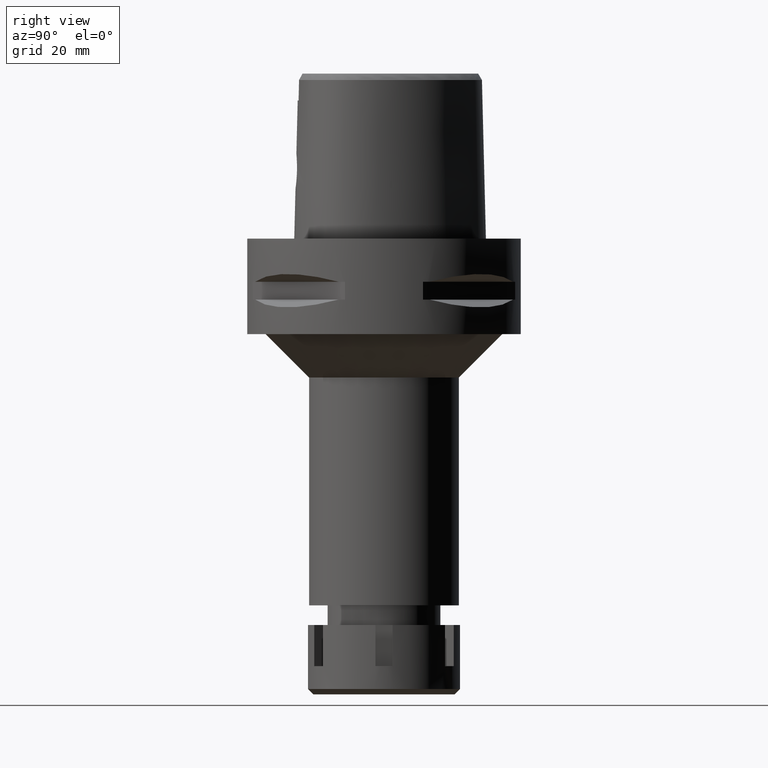
[diagram: clean part render]
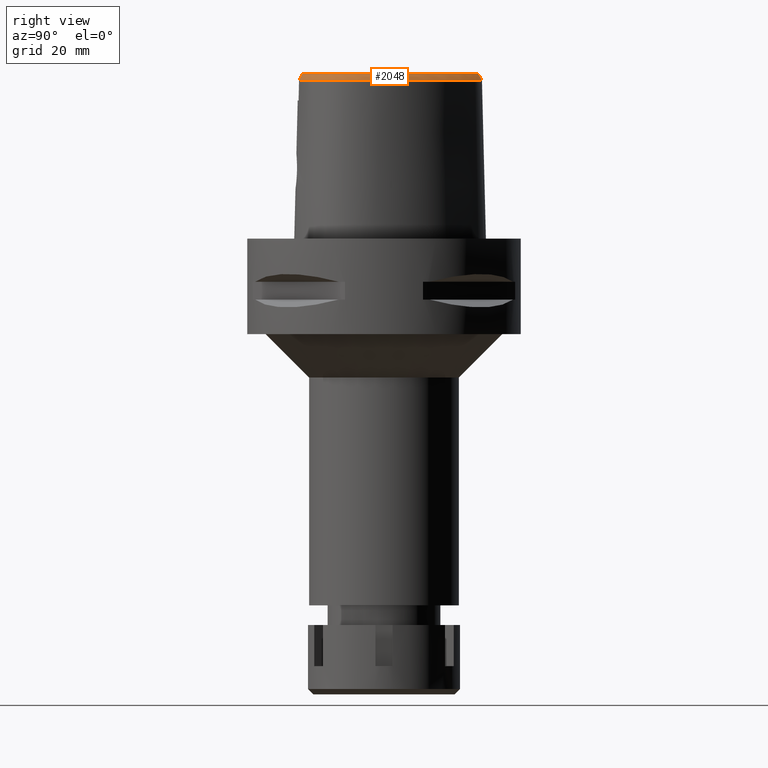
[diagram: same view with one face highlighted and labeled with its STEP entity id]
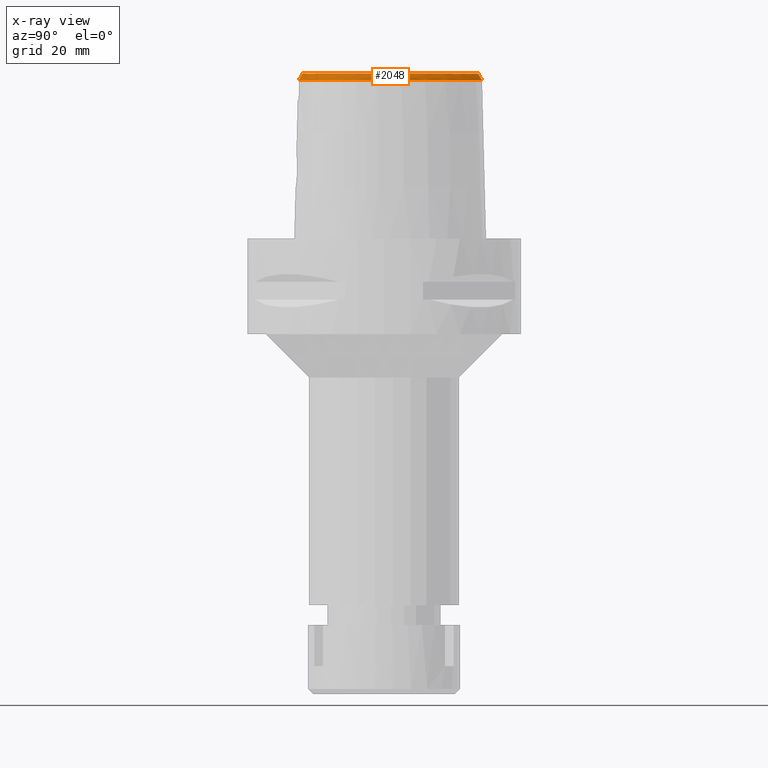
[diagram: x-ray of the same camera — body ghosted, the highlighted face saturated]
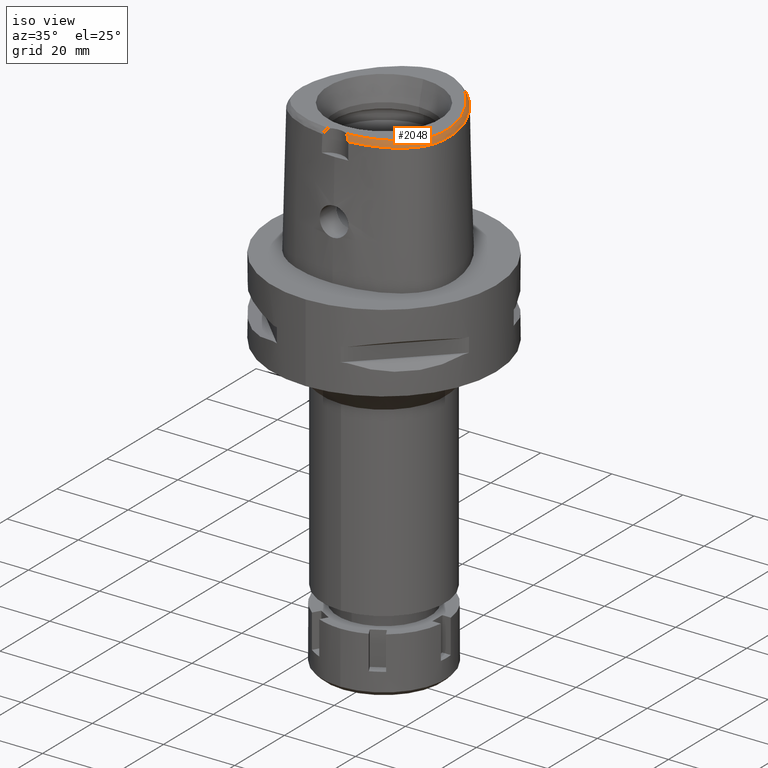
[diagram: same view with one face highlighted and labeled with its STEP entity id]
A machine part, right view. The second image highlights one B-rep face of the part: STEP entity #2048.
The next image is the same camera in x-ray: the body ghosted, the highlighted face saturated — about 0% of this face is hidden behind the body in this view.
A second angle (iso view) of the same face is appended — the face is thin or edge-on in the first view.
In plain terms, the highlighted face is a freeform B-spline surface patch.
Its self-contained STEP definition (entity closure, byte-faithful):
#4 = CARTESIAN_POINT ( 'NONE',  ( 16.77027971741999579, -14.22520960361999975, 36.95859739862999760 ) ) ;
#18 = CARTESIAN_POINT ( 'NONE',  ( 18.48090646670000226, 5.772583762424000398, 37.56323052471999802 ) ) ;
#21 = CARTESIAN_POINT ( 'NONE',  ( 5.894487344450387134, 20.13186406532343753, 37.99999999999565148 ) ) ;
#29 = CARTESIAN_POINT ( 'NONE',  ( 20.53595431444000141, -6.211100020891999307, 37.56323055905000530 ) ) ;
#43 = CARTESIAN_POINT ( 'NONE',  ( 13.32714837666999941, 13.70011182113999837, 38.16786340256999921 ) ) ;
#48 = CARTESIAN_POINT ( 'NONE',  ( 19.54993126781906909, -9.226212439885376426, 38.00000000000051870 ) ) ;
#57 = CARTESIAN_POINT ( 'NONE',  ( 20.05346243395999650, -7.004499759247999613, 38.16786336889999376 ) ) ;
#64 = CARTESIAN_POINT ( 'NONE',  ( 3.538616992104000047, -19.46459844962000219, 36.71623483132999866 ) ) ;
#75 = CARTESIAN_POINT ( 'NONE',  ( 14.26377732472000126, 12.48899554595999994, 38.16786327608000562 ) ) ;
#81 = CARTESIAN_POINT ( 'NONE',  ( 20.38292172607859953, -3.276278498261098182, 37.99999999999266720 ) ) ;
#92 = CARTESIAN_POINT ( 'NONE',  ( 2.887310443495000101, 21.94330980029999978, 36.95859789458999956 ) ) ;
#101 = CARTESIAN_POINT ( 'NONE',  ( 19.71158274065000171, 4.591222921567999826, 36.35396398715000288 ) ) ;
#115 = CARTESIAN_POINT ( 'NONE',  ( 1.312651314722000029, 21.51218614369999926, 38.16786341031000518 ) ) ;
#130 = CARTESIAN_POINT ( 'NONE',  ( 20.36412151360978839, -5.276385427453520016, 38.00000000000137135 ) ) ;
#144 = CARTESIAN_POINT ( 'NONE',  ( 2.712693346315999676, 21.24888306161999907, 38.16786328986999877 ) ) ;
#174 = CARTESIAN_POINT ( 'NONE',  ( -0.3941061714325999610, 21.58243180206000034, 38.16786335113999939 ) ) ;
#200 = CARTESIAN_POINT ( 'NONE',  ( 1.401755086744999934, 22.22268948226999896, 36.95859714739999902 ) ) ;
#220 = ORIENTED_EDGE ( 'NONE', *, *, #5160, .T. ) ;
#237 = CARTESIAN_POINT ( 'NONE',  ( 6.380974127333999490, -19.27358309198000086, 36.35396444141999694 ) ) ;
#254 = B_SPLINE_CURVE_WITH_KNOTS ( 'NONE', 3,
 ( #3138, #64, #3079, #3986, #459, #1770 ),
 .UNSPECIFIED., .F., .F.,
 ( 4, 1, 1, 4 ),
 ( 0.0000000000000000000, 0.3333333333333000081, 0.6666666666667000474, 1.000000000000000000 ),
 .UNSPECIFIED. ) ;
#264 = VERTEX_POINT ( 'NONE', #5329 ) ;
#270 = CARTESIAN_POINT ( 'NONE',  ( 15.35794273910000030, -15.33035634436999928, 36.95859813712999653 ) ) ;
#296 = CARTESIAN_POINT ( 'NONE',  ( 4.701486591769999279, -18.46760721563000018, 38.16786334769999911 ) ) ;
#320 = CARTESIAN_POINT ( 'NONE',  ( 20.67704204634206278, -8.734985285293410229, 36.52186680739945501 ) ) ;
#322 = CARTESIAN_POINT ( 'NONE',  ( 8.908621252354000930, -17.55270226214000218, 38.16786292045000550 ) ) ;
#347 = CARTESIAN_POINT ( 'NONE',  ( 2.293633170486000239, -19.06888647016999982, 37.56323068940000098 ) ) ;
#372 = CARTESIAN_POINT ( 'NONE',  ( 18.53124102977999854, -11.73353192167000003, 37.56323035772999930 ) ) ;
#396 = CARTESIAN_POINT ( 'NONE',  ( 20.20587862338999940, -2.185090444475000115, 38.16786339538000306 ) ) ;
#418 = CARTESIAN_POINT ( 'NONE',  ( 17.51403175664000145, 7.057124660074999944, 38.16786324404999675 ) ) ;
#432 = CARTESIAN_POINT ( 'NONE',  ( 19.45683187825000005, -9.191387061833999894, 38.16786330304000074 ) ) ;
#447 = CARTESIAN_POINT ( 'NONE',  ( 9.160261741005999880, 19.22819127528000038, 36.35396407601000135 ) ) ;
#450 = CARTESIAN_POINT ( 'NONE',  ( 16.36283630828052438, -13.76236604535423425, 37.99999999999782574 ) ) ;
#455 = CARTESIAN_POINT ( 'NONE',  ( 18.17947091036999652, -13.33143727281999880, 36.35396466529000037 ) ) ;
#459 = CARTESIAN_POINT ( 'NONE',  ( 2.793898266422000454, -18.85131069179000107, 37.86544475370000384 ) ) ;
#467 = CARTESIAN_POINT ( 'NONE',  ( 12.36722274842999880, 14.82488939745999978, 38.16786326035000343 ) ) ;
#471 = CARTESIAN_POINT ( 'NONE',  ( 20.30478359881294281, -2.175347700950774232, 37.99999999999825206 ) ) ;
#480 = CARTESIAN_POINT ( 'NONE',  ( 20.97943541264000089, -5.316197108364000279, 36.95859815565999185 ) ) ;
#499 = CARTESIAN_POINT ( 'NONE',  ( 14.55214791128999963, 12.70104733310999912, 37.56323062808999680 ) ) ;
#503 = CARTESIAN_POINT ( 'NONE',  ( 10.17751632997979172, -17.24426134458915172, 37.99999999999407407 ) ) ;
#512 = CARTESIAN_POINT ( 'NONE',  ( 21.27462656964999965, -2.079812251059000250, 36.35396416229999517 ) ) ;
#529 = CARTESIAN_POINT ( 'NONE',  ( 9.917794562694000504, 18.18026477879000069, 36.95859849922999985 ) ) ;
#530 = EDGE_CURVE ( 'NONE', #264, #1310, #1186, .T. ) ;
#535 = CARTESIAN_POINT ( 'NONE',  ( 18.99619228226586998, -10.46780014453669061, 37.99999999999445777 ) ) ;
#544 = CARTESIAN_POINT ( 'NONE',  ( -0.4076205974947999522, 21.94004588316999715, 37.56323043279000018 ) ) ;
#561 = CARTESIAN_POINT ( 'NONE',  ( 11.46587147800191886, 15.92717600803210765, 38.00000000000034817 ) ) ;
#568 = CARTESIAN_POINT ( 'NONE',  ( -0.6590701766373999737, 22.64327707689999869, 36.35396409420000197 ) ) ;
#601 = CARTESIAN_POINT ( 'NONE',  ( 1.357203200733000159, 21.86743781299000133, 37.56323027884999988 ) ) ;
#632 = CARTESIAN_POINT ( 'NONE',  ( 0.7125260154232000431, 22.64650721910999565, 36.35396436298999845 ) ) ;
#661 = CARTESIAN_POINT ( 'NONE',  ( 3.667801018491000153, 21.72276382675000050, 36.95859781138999978 ) ) ;
#665 = CARTESIAN_POINT ( 'NONE',  ( 2.635293504229000217, -18.68596775313999814, 38.16786324725000412 ) ) ;
#696 = CARTESIAN_POINT ( 'NONE',  ( 2.269443596408000197, -18.71188997687999844, 38.16786325252999745 ) ) ;
#720 = ORIENTED_EDGE ( 'NONE', *, *, #3058, .F. ) ;
#726 = CARTESIAN_POINT ( 'NONE',  ( 11.42184626288000082, -17.04481347029000204, 37.56323036552999639 ) ) ;
#743 = CARTESIAN_POINT ( 'NONE',  ( 2.018320379028144096, 21.50256508435978731, 37.99999999999518252 ) ) ;
#750 = CARTESIAN_POINT ( 'NONE',  ( 7.668110567822999712, -18.25948618286999903, 37.56323123266999886 ) ) ;
#775 = CARTESIAN_POINT ( 'NONE',  ( 19.55745538001144368, -11.29150212658152341, 36.52186680739945501 ) ) ;
#777 = CARTESIAN_POINT ( 'NONE',  ( 13.29157003487000033, -15.76174080654999976, 38.16786335677999631 ) ) ;
#805 = CARTESIAN_POINT ( 'NONE',  ( 20.64125386707000231, -3.264626848341000365, 37.56323042655999700 ) ) ;
#833 = CARTESIAN_POINT ( 'NONE',  ( 18.67630953973000274, -12.74018543348999977, 36.35396522000999653 ) ) ;
#847 = CARTESIAN_POINT ( 'NONE',  ( 18.15083519111000143, 5.634102303568999659, 38.16786331581000269 ) ) ;
#857 = CARTESIAN_POINT ( 'NONE',  ( 19.52299281879999882, -9.973081396863999970, 37.56323048658000374 ) ) ;
#877 = CARTESIAN_POINT ( 'NONE',  ( 9.461503070273000304, 17.62858232652999746, 38.16786319241000314 ) ) ;
#883 = CARTESIAN_POINT ( 'NONE',  ( 20.40062138795126501, -4.309334958867775178, 37.99999999999833022 ) ) ;
#889 = CARTESIAN_POINT ( 'NONE',  ( 18.90809286343999673, -10.42176203238000021, 38.16786338004000356 ) ) ;
#904 = CARTESIAN_POINT ( 'NONE',  ( 20.19348876915000091, 3.158826188289000303, 36.35396669634000233 ) ) ;
#910 = CARTESIAN_POINT ( 'NONE',  ( 20.27923816685849800, -6.179850483267850692, 38.00000000000648015 ) ) ;
#917 = CARTESIAN_POINT ( 'NONE',  ( 21.24671369492999773, -6.297619323286000714, 36.35396507188000470 ) ) ;
#929 = CARTESIAN_POINT ( 'NONE',  ( 15.46195889674999968, 11.40075487046000013, 37.56323070373999684 ) ) ;
#932 = CARTESIAN_POINT ( 'NONE',  ( 12.37622418509453048, -16.33871033285954155, 37.99999999999644729 ) ) ;
#941 = CARTESIAN_POINT ( 'NONE',  ( 20.76942877787999819, -0.9153880653661999878, 36.95859785068000036 ) ) ;
#959 = CARTESIAN_POINT ( 'NONE',  ( 9.689648816483000360, 17.90442355265999907, 37.56323084582000149 ) ) ;
#966 = CARTESIAN_POINT ( 'NONE',  ( 20.15127154947216681, -7.022178451341024363, 38.00000000000400746 ) ) ;
#980 = CARTESIAN_POINT ( 'NONE',  ( 1.446306972756000064, 22.57794115155999748, 36.35396401594000082 ) ) ;
#1000 = CARTESIAN_POINT ( 'NONE',  ( 6.760281394351055795, 19.65404668909480534, 37.99999999999227640 ) ) ;
#1033 = CARTESIAN_POINT ( 'NONE',  ( 4.220263697030000039, 20.77330416390999801, 38.16786335279999776 ) ) ;
#1042 = LINE ( 'NONE', #2011, #1236 ) ;
#1062 = CARTESIAN_POINT ( 'NONE',  ( 7.255159959434999806, 20.49361811647000309, 36.35396461153999326 ) ) ;
#1094 = VERTEX_POINT ( 'NONE', #3157 ) ;
#1095 = CARTESIAN_POINT ( 'NONE',  ( 3.452269185702000254, 21.03994173138000079, 38.16786330328000076 ) ) ;
#1129 = CARTESIAN_POINT ( 'NONE',  ( 14.53669620847999866, -15.86814133432999974, 36.95859783851000202 ) ) ;
#1154 = CARTESIAN_POINT ( 'NONE',  ( 13.70645019738519998, 15.04851265230584190, 36.52186680739945501 ) ) ;
#1158 = CARTESIAN_POINT ( 'NONE',  ( 3.556544909296999624, -18.96454848652999914, 37.56323067255999604 ) ) ;
#1185 = CARTESIAN_POINT ( 'NONE',  ( 7.583291121697000037, -17.91172840025000212, 38.16786304373000149 ) ) ;
#1186 = B_SPLINE_CURVE_WITH_KNOTS ( 'NONE', 3,
 ( #2131, #1702, #4301, #4613, #743, #4223, #2643, #2191, #1339, #21, #1000, #1757, #3036, #3093, #5152, #561, #2295, #2701, #4405, #4743, #4795, #3546, #1308, #3917, #5262, #3485, #5180, #3155, #4023, #471, #81, #883, #130, #910, #966, #4433, #2620, #48, #4820, #535, #4773, #1878, #4355, #2270, #4335, #450, #1788, #3064, #1365, #3517, #932, #2216, #503, #5236, #2668, #3940, #3999, #2246, #1818, #5211 ),
 .UNSPECIFIED., .F., .F.,
 ( 4, 1, 1, 1, 1, 1, 1, 1, 1, 1, 1, 1, 1, 1, 1, 1, 1, 1, 1, 1, 1, 1, 1, 1, 1, 1, 1, 1, 1, 1, 1, 1, 1, 1, 1, 1, 1, 1, 1, 1, 1, 1, 1, 1, 1, 1, 1, 1, 1, 1, 1, 1, 1, 1, 1, 1, 1, 4 ),
 ( 0.0000000000000000000, 0.01775854187129999318, 0.03551708374169992855, 0.05327562561200005486, 0.07103416748239999023, 0.08879270935270000553, 0.1065512512231000519, 0.1243097930933999562, 0.1420683349638000026, 0.1598268768341000179, 0.1775854187044000332, 0.1953439605747999686, 0.2131025024450999839, 0.2308610443155000302, 0.2486195861857999345, 0.2663781280563000120, 0.2841366699266000273, 0.3018952117970000737, 0.3196537536672999780, 0.3374122955377000244, 0.3551708374080000397, 0.3729293792782999439, 0.3906879211486999903, 0.4084464630190000056, 0.4262050048894000520, 0.4439635467596999563, 0.4617220886301000027, 0.4794806305004000180, 0.4972391723707999533, 0.5149977142410999686, 0.5327562561113999839, 0.5505147979818000303, 0.5682733398521000456, 0.5860318817224999810, 0.6037904235927999963, 0.6215489654632000427, 0.6393075073334999470, 0.6570660492038999934, 0.6748245910742000087, 0.6925831329445000240, 0.7103416748149000703, 0.7281002166851999746, 0.7458587585556000210, 0.7636173004259000363, 0.7813758422962999717, 0.7991343841665999870, 0.8168929260370000334, 0.8346514679073000487, 0.8524100097776999840, 0.8701685516479999993, 0.8879270935183000146, 0.9056856353886799660, 0.9234441772589799813, 0.9412027191293600437, 0.9589612609997000270, 0.9767198028700500023, 0.9944783447403919840, 1.000000000000000000 ),
 .UNSPECIFIED. ) ;
#1208 = CARTESIAN_POINT ( 'NONE',  ( 21.32871516740188156, -4.105831245034571531, 36.52186680739945501 ) ) ;
#1210 = CARTESIAN_POINT ( 'NONE',  ( 16.29716062860000036, -13.68776043241999929, 38.16786336981000005 ) ) ;
#1236 = VECTOR ( 'NONE', #2379, 1000.000000000000227 ) ;
#1240 = CARTESIAN_POINT ( 'NONE',  ( 11.28558351444999985, -16.71379327670999970, 38.16786337698999887 ) ) ;
#1268 = CARTESIAN_POINT ( 'NONE',  ( 20.89133400468000090, -6.254359672089000455, 36.95859781546000278 ) ) ;
#1271 = ORIENTED_EDGE ( 'NONE', *, *, #530, .T. ) ;
#1291 = CARTESIAN_POINT ( 'NONE',  ( 17.37898338789999997, -12.61528852768999975, 38.16786334409000148 ) ) ;
#1306 = CARTESIAN_POINT ( 'NONE',  ( 11.90448723701000056, 16.36044791891000116, 36.95859995005999821 ) ) ;
#1308 = CARTESIAN_POINT ( 'NONE',  ( 17.60373714028159853, 7.099883643192407945, 37.99999999999548095 ) ) ;
#1310 = VERTEX_POINT ( 'NONE', #1531 ) ;
#1315 = CARTESIAN_POINT ( 'NONE',  ( 17.62463317175999933, -13.91606142571000149, 36.35396451628999870 ) ) ;
#1333 = CARTESIAN_POINT ( 'NONE',  ( 20.24102503980999757, 1.675433194360999911, 36.95860023710999798 ) ) ;
#1339 = CARTESIAN_POINT ( 'NONE',  ( 5.059249257020304924, 20.53399274679572883, 37.99999999999438671 ) ) ;
#1345 = CARTESIAN_POINT ( 'NONE',  ( 19.86007806474000148, -10.91924092671999880, 36.35396431269000317 ) ) ;
#1361 = CARTESIAN_POINT ( 'NONE',  ( 19.37524654826999893, 4.468730836737999645, 36.95859712917999929 ) ) ;
#1365 = CARTESIAN_POINT ( 'NONE',  ( 14.21382211798866990, -15.34284287400575764, 38.00000000000138556 ) ) ;
#1370 = CARTESIAN_POINT ( 'NONE',  ( 21.37515598259000171, -4.318319413434999809, 36.35396477447000052 ) ) ;
#1384 = CARTESIAN_POINT ( 'NONE',  ( 17.83714473832000280, 7.211139747774000242, 37.56323071143000192 ) ) ;
#1398 = CARTESIAN_POINT ( 'NONE',  ( 2.132364857456999996, 22.10858695389000061, 36.95859751270000260 ) ) ;
#1459 = CARTESIAN_POINT ( 'NONE',  ( 2.800001894905999933, 21.59609643095999942, 37.56323059223000627 ) ) ;
#1481 = CARTESIAN_POINT ( 'NONE',  ( 7.997203163876000609, 19.60756130022000221, 36.95859754771000638 ) ) ;
#1516 = CARTESIAN_POINT ( 'NONE',  ( 0.6675614825497000471, 21.93183750162999957, 37.56323037093999773 ) ) ;
#1531 = CARTESIAN_POINT ( 'NONE',  ( 2.682287482605000051, -18.78036330228999873, 38.00000000000000000 ) ) ;
#1552 = CARTESIAN_POINT ( 'NONE',  ( 12.79391867487999868, -17.21920154589999896, 36.35396442400000439 ) ) ;
#1574 = CARTESIAN_POINT ( 'NONE',  ( 17.90324024158007887, -13.53935104435961989, 36.52186680739945501 ) ) ;
#1579 = CARTESIAN_POINT ( 'NONE',  ( 2.342012318640999791, -19.78287945675999637, 36.35396556314000094 ) ) ;
#1605 = CARTESIAN_POINT ( 'NONE',  ( 13.63258296525000013, -16.39127803872000300, 36.95859747947000074 ) ) ;
#1630 = CARTESIAN_POINT ( 'NONE',  ( 16.39211273426537829, -14.95758104716071912, 36.52186680739945501 ) ) ;
#1632 = CARTESIAN_POINT ( 'NONE',  ( 6.245446597986000548, -18.57063148121000040, 37.56323039175000389 ) ) ;
#1656 = CARTESIAN_POINT ( 'NONE',  ( 2.663417302221999794, -19.04268562563999723, 37.56323070311999857 ) ) ;
#1684 = CARTESIAN_POINT ( 'NONE',  ( 19.54274966431000138, -10.75341462859999986, 36.95859733513999856 ) ) ;
#1702 = CARTESIAN_POINT ( 'NONE',  ( 0.2185816947241066288, 21.68728795389817421, 38.00000000000032685 ) ) ;
#1712 = CARTESIAN_POINT ( 'NONE',  ( 20.71515649420999949, -8.826656816317001386, 36.35396458097000050 ) ) ;
#1727 = CARTESIAN_POINT ( 'NONE',  ( 16.93376513283999785, 10.40988374265000083, 36.35396462652999361 ) ) ;
#1741 = CARTESIAN_POINT ( 'NONE',  ( 20.17699802851000257, -10.26468831772000101, 36.35396479877999809 ) ) ;
#1754 = CARTESIAN_POINT ( 'NONE',  ( 19.14104901786000212, 6.049546680135000187, 36.35396494252999844 ) ) ;
#1757 = CARTESIAN_POINT ( 'NONE',  ( 7.655962789343106145, 19.09402979099325037, 37.99999999999913314 ) ) ;
#1764 = CARTESIAN_POINT ( 'NONE',  ( 17.64581256206000148, -12.85400477607000091, 37.56323045116000259 ) ) ;
#1770 = CARTESIAN_POINT ( 'NONE',  ( 2.682287482605000051, -18.78036330228999873, 38.00000000000000000 ) ) ;
#1782 = CARTESIAN_POINT ( 'NONE',  ( 12.15914528717999943, 16.61200335838000441, 36.35396844582000142 ) ) ;
#1788 = CARTESIAN_POINT ( 'NONE',  ( 15.72078707640701545, -14.29615620309345125, 38.00000000000010658 ) ) ;
#1795 = CARTESIAN_POINT ( 'NONE',  ( 20.65921063342999986, -4.311718951535000066, 37.56323048013000232 ) ) ;
#1812 = CARTESIAN_POINT ( 'NONE',  ( 16.05816515652999854, 11.79702195062000136, 36.35396561721000097 ) ) ;
#1818 = CARTESIAN_POINT ( 'NONE',  ( 2.845098933833369426, -18.76733062685692843, 37.99999999999875655 ) ) ;
#1828 = CARTESIAN_POINT ( 'NONE',  ( 5.165040061136999761, 20.76997377615999696, 37.56323056884000522 ) ) ;
#1841 = CARTESIAN_POINT ( 'NONE',  ( 17.42936182586999649, 8.809981839603000964, 36.95859776747000325 ) ) ;
#1878 = CARTESIAN_POINT ( 'NONE',  ( 18.31883910943097504, -11.58595831188011083, 37.99999999999744915 ) ) ;
#1890 = CARTESIAN_POINT ( 'NONE',  ( 7.600958356754000000, 19.01125380259999886, 38.16786334577999895 ) ) ;
#1916 = CARTESIAN_POINT ( 'NONE',  ( -0.6187614228714999332, 21.92883805936000030, 37.56323029960999804 ) ) ;
#1941 = CARTESIAN_POINT ( 'NONE',  ( 3.560035102097000248, 21.38135277905999843, 37.56323055733000160 ) ) ;
#1978 = CARTESIAN_POINT ( 'NONE',  ( 2.719664898207000192, -19.75612137062000073, 36.35396561485000433 ) ) ;
#2007 = CARTESIAN_POINT ( 'NONE',  ( 15.56211217847999961, -15.62442626286999925, 36.35396558031000325 ) ) ;
#2011 = CARTESIAN_POINT ( 'NONE',  ( -1.605369804321000336E-11, 22.56201468012000078, 36.52186680743999858 ) ) ;
#2033 = CARTESIAN_POINT ( 'NONE',  ( 4.853734834066000481, -19.53059556259999852, 36.35396462983999299 ) ) ;
#2048 = ADVANCED_FACE ( 'NONE', ( #4121 ), #3674, .F. ) ;
#2063 = CARTESIAN_POINT ( 'NONE',  ( 18.90964962507899472, -12.28759713487873562, 36.52186680739945501 ) ) ;
#2064 = CARTESIAN_POINT ( 'NONE',  ( 16.32125663487000011, -15.06383339753999984, 36.35396474654999821 ) ) ;
#2089 = CARTESIAN_POINT ( 'NONE',  ( 0.7901461619522839319, 22.56201467849670905, 36.52186680739945501 ) ) ;
#2091 = CARTESIAN_POINT ( 'NONE',  ( 4.802985419967000347, -19.17626611361000144, 36.95859753579000540 ) ) ;
#2114 = CARTESIAN_POINT ( 'NONE',  ( 18.23720682363000023, -11.52924144665000128, 38.16786337999000267 ) ) ;
#2131 = CARTESIAN_POINT ( 'NONE',  ( -3.470663397237000043E-11, 21.68728795390000030, 38.00000000000000000 ) ) ;
#2142 = CARTESIAN_POINT ( 'NONE',  ( 18.82527523593000041, -11.93782239668999878, 36.95859733548000037 ) ) ;
#2159 = CARTESIAN_POINT ( 'NONE',  ( 18.16025771998999616, 7.365154835472999650, 36.95859817881999732 ) ) ;
#2172 = CARTESIAN_POINT ( 'NONE',  ( 17.12060085822000133, -13.40747028254999940, 37.56323041161999754 ) ) ;
#2187 = CARTESIAN_POINT ( 'NONE',  ( 19.03891035588999969, 4.346238751909000442, 37.56323027121000280 ) ) ;
#2191 = CARTESIAN_POINT ( 'NONE',  ( 4.255661039972256532, 20.86618068829422867, 37.99999999999789679 ) ) ;
#2199 = CARTESIAN_POINT ( 'NONE',  ( 17.83367266477000257, -12.07411372297999996, 38.16786328751999946 ) ) ;
#2211 = CARTESIAN_POINT ( 'NONE',  ( 11.39517113668999926, 15.85733703998000088, 38.16786295855000333 ) ) ;
#2216 = CARTESIAN_POINT ( 'NONE',  ( 11.32341394162891213, -16.80569392800508766, 37.99999999999558753 ) ) ;
#2223 = CARTESIAN_POINT ( 'NONE',  ( 19.11930944207000138, -12.14211287170999931, 36.35396431323000144 ) ) ;
#2241 = CARTESIAN_POINT ( 'NONE',  ( 17.74483510697000099, 8.979093803368000337, 36.35396499601999665 ) ) ;
#2246 = CARTESIAN_POINT ( 'NONE',  ( 3.529311563348184855, -18.70747079910241695, 37.99999999999627676 ) ) ;
#2266 = CARTESIAN_POINT ( 'NONE',  ( 19.16780973710999803, 2.840796523839999921, 38.16786313695999411 ) ) ;
#2270 = CARTESIAN_POINT ( 'NONE',  ( 17.45306278053327276, -12.68156296993346821, 38.00000000000289191 ) ) ;
#2279 = CARTESIAN_POINT ( 'NONE',  ( -0.4346494496193000212, 22.65527404537999701, 36.35396459609000175 ) ) ;
#2295 = CARTESIAN_POINT ( 'NONE',  ( 12.44125753246570909, 14.89118158853759155, 38.00000000000146372 ) ) ;
#2339 = CARTESIAN_POINT ( 'NONE',  ( 0.02237713485218999904, 21.59404142097000090, 38.16786331633999652 ) ) ;
#2369 = CARTESIAN_POINT ( 'NONE',  ( 0.02305152533508000173, 21.95206433046000072, 37.56323052335000767 ) ) ;
#2379 = DIRECTION ( 'NONE',  ( -1.086011392552015333E-11, -0.5092834681090075977, 0.8605988316927122295 ) ) ;
#2395 = CARTESIAN_POINT ( 'NONE',  ( 5.018590749119000272, 20.44329831804000008, 38.16786329884999418 ) ) ;
#2398 = VERTEX_POINT ( 'NONE', #4289 ) ;
#2400 = CARTESIAN_POINT ( 'NONE',  ( 3.594244828599999941, -19.32042866698999717, 36.95859808614000031 ) ) ;
#2431 = CARTESIAN_POINT ( 'NONE',  ( 10.15538781007050595, 18.47129526703032454, 36.52186680739945501 ) ) ;
#2433 = CARTESIAN_POINT ( 'NONE',  ( 10.38262039890000032, -17.82569031144999983, 36.95859916402999801 ) ) ;
#2463 = CARTESIAN_POINT ( 'NONE',  ( 3.631944747901999726, -19.67630884744999875, 36.35396549971000013 ) ) ;
#2483 = CARTESIAN_POINT ( 'NONE',  ( 19.88562079788610859, 4.345879946636464375, 36.52186680739945501 ) ) ;
#2512 = CARTESIAN_POINT ( 'NONE',  ( 3.637738219117000238, -19.56971420299000286, 36.52185956443999970 ) ) ;
#2515 = CARTESIAN_POINT ( 'NONE',  ( 9.112478425359000767, -18.23897865747000324, 36.95860018638000355 ) ) ;
#2543 = CARTESIAN_POINT ( 'NONE',  ( 20.26493925263999785, -5.269968194669000461, 38.16786324779000239 ) ) ;
#2568 = CARTESIAN_POINT ( 'NONE',  ( 21.11036873095999766, -7.195532270871000335, 36.35396442203000333 ) ) ;
#2583 = CARTESIAN_POINT ( 'NONE',  ( 8.733124124705998526, 18.65362397668999961, 37.56323029479000297 ) ) ;
#2598 = CARTESIAN_POINT ( 'NONE',  ( 20.75806663196000201, -7.131854766997000716, 36.95859740432000251 ) ) ;
#2616 = CARTESIAN_POINT ( 'NONE',  ( 8.946692932855999203, 18.94090762599000044, 36.95859718539999506 ) ) ;
#2620 = CARTESIAN_POINT ( 'NONE',  ( 19.78323211892977085, -8.541156231035737179, 37.99999999999450040 ) ) ;
#2630 = CARTESIAN_POINT ( 'NONE',  ( 20.03051489614000147, -8.616912783279000010, 37.56323042878000251 ) ) ;
#2640 = CARTESIAN_POINT ( 'NONE',  ( 15.12888908444999814, 13.12515090739000101, 36.35396533208999870 ) ) ;
#2643 = CARTESIAN_POINT ( 'NONE',  ( 3.482188079159811878, 21.13472718027324504, 37.99999999999899103 ) ) ;
#2651 = CARTESIAN_POINT ( 'NONE',  ( 20.62218733263999937, -5.293082651516000325, 37.56323070171999490 ) ) ;
#2665 = CARTESIAN_POINT ( 'NONE',  ( 15.76006202664000178, 11.59888841053999897, 36.95859816048000113 ) ) ;
#2668 = CARTESIAN_POINT ( 'NONE',  ( 7.606839420237840876, -18.00827588386420075, 38.00000000000088818 ) ) ;
#2678 = CARTESIAN_POINT ( 'NONE',  ( 20.06156840183999890, -1.022604612487000075, 38.16786329694999580 ) ) ;
#2696 = CARTESIAN_POINT ( 'NONE',  ( 14.84051849786999888, 12.91309912024999917, 36.95859798008999775 ) ) ;
#2701 = CARTESIAN_POINT ( 'NONE',  ( 13.40430406168875699, 13.76274261013035449, 38.00000000000322586 ) ) ;
#2711 = CARTESIAN_POINT ( 'NONE',  ( 4.602760506829000064, 21.77690983963000093, 36.35396457982999863 ) ) ;
#2759 = CARTESIAN_POINT ( 'NONE',  ( 8.195325567436999137, 19.90571504903000033, 36.35396464867999100 ) ) ;
#2793 = CARTESIAN_POINT ( 'NONE',  ( 1.999937584101000088, 21.40488060280999605, 38.16786335142000297 ) ) ;
#2826 = CARTESIAN_POINT ( 'NONE',  ( 4.347762633629999485, 21.10783938915000135, 37.56323042848000426 ) ) ;
#2858 = CARTESIAN_POINT ( 'NONE',  ( 14.94960386035000077, -14.74221650738000022, 38.16786325076999731 ) ) ;
#2889 = CARTESIAN_POINT ( 'NONE',  ( 15.88011951150999934, -14.49985658229999963, 37.56323047272000082 ) ) ;
#2910 = CARTESIAN_POINT ( 'NONE',  ( 17.27359236349207805, 9.972912859139480446, 36.52186680739945501 ) ) ;
#2911 = CARTESIAN_POINT ( 'NONE',  ( 13.80308943044000003, -16.70604665480999884, 36.35396454082000162 ) ) ;
#2932 = CARTESIAN_POINT ( 'NONE',  ( 7.300578979383510081, -19.07170738131100762, 36.52186680739945501 ) ) ;
#2934 = CARTESIAN_POINT ( 'NONE',  ( 2.065962235908000100, -18.72443160214000102, 38.16786325794999613 ) ) ;
#2963 = CARTESIAN_POINT ( 'NONE',  ( 9.214407011860998864, -18.58211685512999978, 36.35396881935000124 ) ) ;
#2994 = CARTESIAN_POINT ( 'NONE',  ( 20.37283569517000004, -8.721784799797998033, 36.95859750486999928 ) ) ;
#3010 = CARTESIAN_POINT ( 'NONE',  ( 20.54558683549000264, 0.3494545795877999628, 36.95859975852999924 ) ) ;
#3019 = CARTESIAN_POINT ( 'NONE',  ( 19.20462852480000038, -11.35333571857000123, 36.95859764909999967 ) ) ;
#3033 = CARTESIAN_POINT ( 'NONE',  ( 12.63389124531000185, 15.06366957598999967, 37.56323066904000285 ) ) ;
#3036 = CARTESIAN_POINT ( 'NONE',  ( 8.578848111816569144, 18.44609846599186653, 37.99999999999742784 ) ) ;
#3045 = CARTESIAN_POINT ( 'NONE',  ( 20.93197234780999949, -8.037229726619999681, 36.35396447688000165 ) ) ;
#3058 = EDGE_CURVE ( 'NONE', #2398, #1310, #254, .T. ) ;
#3060 = CARTESIAN_POINT ( 'NONE',  ( 16.62663957998000086, 10.22604666203999990, 36.95859753370000078 ) ) ;
#3064 = CARTESIAN_POINT ( 'NONE',  ( 15.00628712263248943, -14.82385870794814053, 37.99999999999662492 ) ) ;
#3073 = CARTESIAN_POINT ( 'NONE',  ( 20.12750782065999999, -9.442264574051998594, 36.95859781288999812 ) ) ;
#3079 = CARTESIAN_POINT ( 'NONE',  ( 3.334308815137999815, -19.26622015304999991, 37.08499129340999900 ) ) ;
#3089 = CARTESIAN_POINT ( 'NONE',  ( 18.48337070167000107, 7.519169923171999947, 36.35396564620000248 ) ) ;
#3093 = CARTESIAN_POINT ( 'NONE',  ( 9.524842839488144364, 17.70516372194645172, 38.00000000000247269 ) ) ;
#3101 = CARTESIAN_POINT ( 'NONE',  ( 20.41549858986000032, -0.9689963389268000382, 37.56323057381000297 ) ) ;
#3117 = CARTESIAN_POINT ( 'NONE',  ( 10.42285805411000155, 16.79270209326999819, 38.16786293826000076 ) ) ;
#3136 = CARTESIAN_POINT ( 'NONE',  ( 0.6450792161129000890, 21.57450264288999975, 38.16786337492000314 ) ) ;
#3138 = CARTESIAN_POINT ( 'NONE',  ( 3.637738219117000238, -19.56971420299000286, 36.52185956443999970 ) ) ;
#3155 = CARTESIAN_POINT ( 'NONE',  ( 19.94150023628273516, 0.2261566111944858515, 38.00000000000032685 ) ) ;
#3157 = CARTESIAN_POINT ( 'NONE',  ( -1.605369804321000336E-11, 22.56201468012000078, 36.52186680743999858 ) ) ;
#3167 = CARTESIAN_POINT ( 'NONE',  ( 4.475261570228999730, 21.44237461438999759, 36.95859750414999922 ) ) ;
#3192 = CARTESIAN_POINT ( 'NONE',  ( 6.891595639583999677, 19.87682394412999898, 37.56323043689000230 ) ) ;
#3217 = CARTESIAN_POINT ( 'NONE',  ( 6.177894850638000257, 20.67946912212999777, 36.95859792681999778 ) ) ;
#3281 = CARTESIAN_POINT ( 'NONE',  ( 10.26353803307000057, -17.48811564851000000, 37.56323112463999792 ) ) ;
#3303 = CARTESIAN_POINT ( 'NONE',  ( 20.09619608768540644, -10.23243839430331015, 36.52186680739945501 ) ) ;
#3306 = CARTESIAN_POINT ( 'NONE',  ( 14.72415524212999927, -16.17312691433000182, 36.35396510830999972 ) ) ;
#3333 = CARTESIAN_POINT ( 'NONE',  ( 2.376843874103407472, 22.39422497744610041, 36.52186680739945501 ) ) ;
#3334 = CARTESIAN_POINT ( 'NONE',  ( 2.131987563385999707, -19.79582431418999988, 36.35396550999000453 ) ) ;
#3358 = CARTESIAN_POINT ( 'NONE',  ( 14.22011350746495317, -16.41829354688012543, 36.52186680739945501 ) ) ;
#3360 = CARTESIAN_POINT ( 'NONE',  ( 7.752930013948999388, -18.60724396547999859, 36.95859942160999623 ) ) ;
#3385 = CARTESIAN_POINT ( 'NONE',  ( 2.317822744563000192, -19.42588296346000121, 36.95859812626999741 ) ) ;
#3388 = EDGE_CURVE ( 'NONE', #1094, #2398, #5089, .T. ) ;
#3417 = CARTESIAN_POINT ( 'NONE',  ( 19.79216984944999780, -9.316825817943000132, 37.56323055795999721 ) ) ;
#3446 = CARTESIAN_POINT ( 'NONE',  ( 20.30123795884999893, -4.308418720585000194, 38.16786333294999878 ) ) ;
#3459 = CARTESIAN_POINT ( 'NONE',  ( 16.01238847425999978, 9.858372500820999917, 38.16786334802999647 ) ) ;
#3467 = CARTESIAN_POINT ( 'NONE',  ( 20.23604412005000341, -7.868734437539000481, 37.56323040116000556 ) ) ;
#3482 = CARTESIAN_POINT ( 'NONE',  ( 20.58772567852000179, 1.764487607414000125, 36.35396889953000255 ) ) ;
#3485 = CARTESIAN_POINT ( 'NONE',  ( 19.26272899268446892, 2.870227893749285997, 38.00000000000019185 ) ) ;
#3496 = CARTESIAN_POINT ( 'NONE',  ( 18.89842313912000193, -11.16776931044000065, 37.56323048927000485 ) ) ;
#3514 = CARTESIAN_POINT ( 'NONE',  ( 20.19485726793000069, 0.2778684143055999978, 37.56323137398000256 ) ) ;
#3517 = CARTESIAN_POINT ( 'NONE',  ( 13.33890749495518513, -15.84912955619767416, 37.99999999999948841 ) ) ;
#3525 = CARTESIAN_POINT ( 'NONE',  ( 19.84999542365999758, -10.11888485729000031, 36.95859764267999736 ) ) ;
#3540 = CARTESIAN_POINT ( 'NONE',  ( 13.16722823906999906, 15.54122993307000122, 36.35396548642999903 ) ) ;
#3546 = CARTESIAN_POINT ( 'NONE',  ( 16.88599964843437462, 8.518708218769971197, 37.99999999999945288 ) ) ;
#3556 = CARTESIAN_POINT ( 'NONE',  ( 2.974618992084000269, 22.29052316964000013, 36.35396519694999995 ) ) ;
#3567 = CARTESIAN_POINT ( 'NONE',  ( 10.90650684675000015, 17.32054845109999874, 36.95860007592000329 ) ) ;
#3617 = CARTESIAN_POINT ( 'NONE',  ( 6.709813479659000102, 19.56842685796000225, 38.16786334956000104 ) ) ;
#3640 = CARTESIAN_POINT ( 'NONE',  ( -0.6389157997545000800, 22.28605756813000127, 36.95859719690999867 ) ) ;
#3665 = CARTESIAN_POINT ( 'NONE',  ( 3.775566934885000059, 22.06417487442999814, 36.35396506544000061 ) ) ;
#3670 = EDGE_LOOP ( 'NONE', ( #4032, #220, #1271, #720 ) ) ;
#3674 = B_SPLINE_SURFACE_WITH_KNOTS ( 'NONE', 3, 3, ( 
 ( #2934, #4232, #4179, #3334 ),
 ( #696, #347, #3385, #1579 ),
 ( #665, #1656, #4644, #1978 ),
 ( #4594, #1158, #2400, #2463 ),
 ( #296, #5030, #2091, #2033 ),
 ( #5474, #1632, #3759, #237 ),
 ( #1185, #750, #3360, #4202 ),
 ( #322, #5080, #2515, #2963 ),
 ( #3735, #3281, #2433, #5499 ),
 ( #1240, #726, #5444, #3707 ),
 ( #5395, #3791, #5054, #1552 ),
 ( #777, #3817, #1605, #2911 ),
 ( #4151, #4978, #1129, #3306 ),
 ( #2858, #4561, #270, #2007 ),
 ( #4622, #2889, #5419, #2064 ),
 ( #1210, #5003, #4, #4753 ),
 ( #4255, #2172, #3843, #1315 ),
 ( #1291, #1764, #5524, #455 ),
 ( #2199, #4722, #4780, #833 ),
 ( #2114, #372, #2142, #2223 ),
 ( #5135, #3496, #3019, #4312 ),
 ( #889, #5191, #1684, #1345 ),
 ( #4361, #857, #3525, #1741 ),
 ( #432, #3417, #3073, #3901 ),
 ( #3875, #2630, #2994, #1712 ),
 ( #5110, #3467, #5159, #3045 ),
 ( #57, #3924, #2598, #2568 ),
 ( #4342, #29, #1268, #917 ),
 ( #2543, #2651, #480, #3950 ),
 ( #3446, #1795, #5217, #1370 ),
 ( #4675, #805, #4701, #4280 ),
 ( #396, #5553, #4386, #512 ),
 ( #2678, #3101, #941, #4803 ),
 ( #3914, #3514, #3010, #3994 ),
 ( #4296, #4401, #1333, #3482 ),
 ( #2266, #5231, #5206, #904 ),
 ( #4375, #2187, #1361, #101 ),
 ( #847, #18, #5570, #1754 ),
 ( #418, #1384, #2159, #3089 ),
 ( #3937, #4792, #1841, #2241 ),
 ( #3459, #3890, #3060, #1727 ),
 ( #4768, #929, #2665, #1812 ),
 ( #75, #499, #2696, #2640 ),
 ( #43, #3967, #4352, #5150 ),
 ( #467, #3033, #5174, #3540 ),
 ( #2211, #4329, #1306, #1782 ),
 ( #3117, #4737, #3567, #4814 ),
 ( #877, #959, #529, #5257 ),
 ( #4714, #2583, #2616, #447 ),
 ( #1890, #4531, #1481, #2759 ),
 ( #3617, #3192, #4915, #1062 ),
 ( #4948, #5247, #3217, #4060 ),
 ( #2395, #1828, #5307, #4887 ),
 ( #1033, #2826, #3167, #2711 ),
 ( #1095, #1941, #661, #3665 ),
 ( #144, #1459, #92, #3556 ),
 ( #2793, #4501, #1398, #4471 ),
 ( #115, #601, #200, #980 ),
 ( #3136, #1516, #5328, #632 ),
 ( #2339, #2369, #4836, #4416 ),
 ( #174, #544, #4034, #2279 ),
 ( #4007, #1916, #3640, #568 ) ),
 .UNSPECIFIED., .F., .F., .F.,
 ( 4, 1, 1, 1, 1, 1, 1, 1, 1, 1, 1, 1, 1, 1, 1, 1, 1, 1, 1, 1, 1, 1, 1, 1, 1, 1, 1, 1, 1, 1, 1, 1, 1, 1, 1, 1, 1, 1, 1, 1, 1, 1, 1, 1, 1, 1, 1, 1, 1, 1, 1, 1, 1, 1, 1, 1, 1, 1, 1, 4 ),
 ( 4, 4 ),
 ( -0.006872922983041999424, 0.0000000000000000000, 0.005521655259608000341, 0.02328019712995000115, 0.04103873900030000077, 0.05879728087063999797, 0.07655582274102000484, 0.09431436461132000626, 0.1120729064816999992, 0.1298314483520000007, 0.1475899902222999882, 0.1653485320926999791, 0.1831070739629999944, 0.2008656158334000130, 0.2186241577037000006, 0.2363826995740999914, 0.2541412414444000345, 0.2718997833148000254, 0.2896583251850999852, 0.3074168670554999760, 0.3251754089257999913, 0.3429339507961000066, 0.3606924926664999975, 0.3784510345368000128, 0.3962095764072000037, 0.4139681182775000190, 0.4317266601479000099, 0.4494852020181999697, 0.4672437438886000161, 0.4850022857588999758, 0.5027608276292000467, 0.5205193694995999820, 0.5382779113698999973, 0.5560364532403000437, 0.5737949951105999480, 0.5915535369809999944, 0.6093120788513000097, 0.6270706207217000561, 0.6448291625919999603, 0.6625877044622999756, 0.6803462463327000220, 0.6981047882029999263, 0.7158633300733999727, 0.7336218719436999880, 0.7513804138142000655, 0.7691389556844999698, 0.7868974975549000161, 0.8046560394252000314, 0.8224145812955999668, 0.8401731231658999821, 0.8579316650361999974, 0.8756902069066000438, 0.8934487487768999481, 0.9112072906472999945, 0.9289658325176000098, 0.9467243743879999451, 0.9644829162583000715, 0.9822414581287000068, 1.000000000000000000, 1.016088127153999876 ),
 ( -0.08996520911199999693, 1.089985315075000072 ),
 .UNSPECIFIED. ) ;
#3707 = CARTESIAN_POINT ( 'NONE',  ( 11.69437175975000009, -17.70685385744999962, 36.35396434260999854 ) ) ;
#3735 = CARTESIAN_POINT ( 'NONE',  ( 10.14445566724999814, -17.15054098557000017, 38.16786308524000759 ) ) ;
#3759 = CARTESIAN_POINT ( 'NONE',  ( 6.313210362659999575, -18.92210728658999841, 36.95859741659000264 ) ) ;
#3791 = CARTESIAN_POINT ( 'NONE',  ( 12.48705791388000108, -16.57234550566999687, 37.56323038712999818 ) ) ;
#3815 = CARTESIAN_POINT ( 'NONE',  ( 7.108589361577616117, 20.52412316395089675, 36.52186680739945501 ) ) ;
#3817 = CARTESIAN_POINT ( 'NONE',  ( 13.46207650006000023, -16.07650942263000005, 37.56323041812999719 ) ) ;
#3843 = CARTESIAN_POINT ( 'NONE',  ( 17.37261701499000210, -13.66176585412999955, 36.95859746394999945 ) ) ;
#3875 = CARTESIAN_POINT ( 'NONE',  ( 19.68819409710000201, -8.512040766760001986, 38.16786335268000130 ) ) ;
#3890 = CARTESIAN_POINT ( 'NONE',  ( 16.31951402711999677, 10.04220958142999898, 37.56323044087000085 ) ) ;
#3901 = CARTESIAN_POINT ( 'NONE',  ( 20.46284579185999775, -9.567703330160998831, 36.35396506781000170 ) ) ;
#3914 = CARTESIAN_POINT ( 'NONE',  ( 19.84412770036999873, 0.2062822490234000050, 38.16786298942000144 ) ) ;
#3917 = CARTESIAN_POINT ( 'NONE',  ( 18.24247239569373846, 5.672548708072092438, 37.99999999999658229 ) ) ;
#3924 = CARTESIAN_POINT ( 'NONE',  ( 20.40576453295999926, -7.068177263122000120, 37.56323038660999458 ) ) ;
#3937 = CARTESIAN_POINT ( 'NONE',  ( 16.79841526366999815, 8.471757912072000352, 38.16786331035999780 ) ) ;
#3940 = CARTESIAN_POINT ( 'NONE',  ( 6.196495988003249522, -18.31673538864776063, 38.00000000000097344 ) ) ;
#3950 = CARTESIAN_POINT ( 'NONE',  ( 21.33668349264999975, -5.339311565211000143, 36.35396560959000567 ) ) ;
#3967 = CARTESIAN_POINT ( 'NONE',  ( 13.60505815674999930, 13.92570386649999925, 37.56323029900000421 ) ) ;
#3986 = CARTESIAN_POINT ( 'NONE',  ( 3.014706547537000070, -19.00413636108999782, 37.57652200682000654 ) ) ;
#3994 = CARTESIAN_POINT ( 'NONE',  ( 20.89631640305000104, 0.4210407448699999833, 36.35396814308000302 ) ) ;
#3999 = CARTESIAN_POINT ( 'NONE',  ( 4.715576077242224606, -18.56597918134918501, 37.99999999999565148 ) ) ;
#4007 = CARTESIAN_POINT ( 'NONE',  ( -0.5986070459886000394, 21.57161855059000288, 38.16786340232000185 ) ) ;
#4023 = CARTESIAN_POINT ( 'NONE',  ( 20.15982952132113937, -1.007721426051426672, 38.00000000000169109 ) ) ;
#4032 = ORIENTED_EDGE ( 'NONE', *, *, #3388, .F. ) ;
#4034 = CARTESIAN_POINT ( 'NONE',  ( -0.4211350235571000300, 22.29765996428000108, 36.95859751444000096 ) ) ;
#4060 = CARTESIAN_POINT ( 'NONE',  ( 6.342439788763000408, 20.99740579714000077, 36.35396524789999972 ) ) ;
#4121 = FACE_OUTER_BOUND ( 'NONE', #3670, .T. ) ;
#4151 = CARTESIAN_POINT ( 'NONE',  ( 14.16177814115999922, -15.25817017432999911, 38.16786329890999951 ) ) ;
#4179 = CARTESIAN_POINT ( 'NONE',  ( 2.109979120893000104, -19.43869341016999996, 36.95859809264000262 ) ) ;
#4200 = CARTESIAN_POINT ( 'NONE',  ( 21.14970177531143491, -6.717195943318960971, 36.52186680739945501 ) ) ;
#4202 = CARTESIAN_POINT ( 'NONE',  ( 7.837749460076000041, -18.95500174810000260, 36.35396761055000070 ) ) ;
#4223 = CARTESIAN_POINT ( 'NONE',  ( 2.736932690726576745, 21.34527940057325068, 38.00000000000098055 ) ) ;
#4232 = CARTESIAN_POINT ( 'NONE',  ( 2.087970678401000146, -19.08156250615000005, 37.56323067529000070 ) ) ;
#4255 = CARTESIAN_POINT ( 'NONE',  ( 16.86858470146000144, -13.15317471098000013, 38.16786335927999829 ) ) ;
#4280 = CARTESIAN_POINT ( 'NONE',  ( 21.35648738168000094, -3.232367407099999923, 36.35396457262999803 ) ) ;
#4289 = CARTESIAN_POINT ( 'NONE',  ( 3.637738219117000238, -19.56971420299000286, 36.52185956443999970 ) ) ;
#4296 = CARTESIAN_POINT ( 'NONE',  ( 19.54762376237999888, 1.497324368254999927, 38.16786291228000749 ) ) ;
#4301 = CARTESIAN_POINT ( 'NONE',  ( 0.6513209347955413175, 21.67370899611464452, 38.00000000000249401 ) ) ;
#4312 = CARTESIAN_POINT ( 'NONE',  ( 19.51083391048000237, -11.53890212671000093, 36.35396480893000160 ) ) ;
#4329 = CARTESIAN_POINT ( 'NONE',  ( 11.64982918684999902, 16.10889247944999880, 37.56323145430000210 ) ) ;
#4335 = CARTESIAN_POINT ( 'NONE',  ( 16.93855157777872478, -13.22377441789236485, 37.99999999999804601 ) ) ;
#4342 = CARTESIAN_POINT ( 'NONE',  ( 20.18057462420000192, -6.167840369694999936, 38.16786330263000337 ) ) ;
#4352 = CARTESIAN_POINT ( 'NONE',  ( 13.88296793684000008, 14.15129591187000102, 36.95859719542999500 ) ) ;
#4355 = CARTESIAN_POINT ( 'NONE',  ( 17.91165267839251385, -12.13575389397420956, 38.00000000000248690 ) ) ;
#4361 = CARTESIAN_POINT ( 'NONE',  ( 19.19599021395000094, -9.827277936434999361, 38.16786333046999857 ) ) ;
#4375 = CARTESIAN_POINT ( 'NONE',  ( 18.70257416351000046, 4.223746667080000350, 38.16786341324999654 ) ) ;
#4386 = CARTESIAN_POINT ( 'NONE',  ( 20.91837725422999483, -2.114904982197999939, 36.95859724000000313 ) ) ;
#4401 = CARTESIAN_POINT ( 'NONE',  ( 19.89432440108999955, 1.586378781307999919, 37.56323157469000051 ) ) ;
#4405 = CARTESIAN_POINT ( 'NONE',  ( 14.34383722811621631, 12.54786717290375186, 37.99999999999499067 ) ) ;
#4416 = CARTESIAN_POINT ( 'NONE',  ( 0.02440030630085999672, 22.66811014942999947, 36.35396493738000601 ) ) ;
#4433 = CARTESIAN_POINT ( 'NONE',  ( 19.98468477322980874, -7.807876343103409944, 37.99999999999823785 ) ) ;
#4471 = CARTESIAN_POINT ( 'NONE',  ( 2.198578494134999950, 22.46044012943000112, 36.35396459334000241 ) ) ;
#4501 = CARTESIAN_POINT ( 'NONE',  ( 2.066151220779000042, 21.75673377835000011, 37.56323043206000278 ) ) ;
#4531 = CARTESIAN_POINT ( 'NONE',  ( 7.799080760315000305, 19.30940755141000054, 37.56323044674999778 ) ) ;
#4558 = CARTESIAN_POINT ( 'NONE',  ( 4.757642236485025045, 21.67478320247824897, 36.52186680739945501 ) ) ;
#4561 = CARTESIAN_POINT ( 'NONE',  ( 15.15377329973000009, -15.03628642587999842, 37.56323069394999692 ) ) ;
#4594 = CARTESIAN_POINT ( 'NONE',  ( 3.518844989995000283, -18.60866830607999844, 38.16786325898999621 ) ) ;
#4613 = CARTESIAN_POINT ( 'NONE',  ( 1.325020189552755134, 21.61081414408949186, 38.00000000000041211 ) ) ;
#4622 = CARTESIAN_POINT ( 'NONE',  ( 15.65955094983000073, -14.21786817469000042, 38.16786333579999990 ) ) ;
#4644 = CARTESIAN_POINT ( 'NONE',  ( 2.691541100213999727, -19.39940349813000253, 36.95859815897999567 ) ) ;
#4675 = CARTESIAN_POINT ( 'NONE',  ( 20.28363710977000167, -3.280756568961999964, 38.16786335353000226 ) ) ;
#4701 = CARTESIAN_POINT ( 'NONE',  ( 20.99887062437999674, -3.248497127719999877, 36.95859749960000329 ) ) ;
#4714 = CARTESIAN_POINT ( 'NONE',  ( 8.519555316554999536, 18.36634032739999967, 38.16786340417999668 ) ) ;
#4722 = CARTESIAN_POINT ( 'NONE',  ( 18.11455162308999789, -12.29613762648000019, 37.56323059835000322 ) ) ;
#4737 = CARTESIAN_POINT ( 'NONE',  ( 10.66468245042999996, 17.05662527217999980, 37.56323150709000203 ) ) ;
#4743 = CARTESIAN_POINT ( 'NONE',  ( 15.24661770199666933, 11.25762885478455999, 37.99999999999872813 ) ) ;
#4753 = CARTESIAN_POINT ( 'NONE',  ( 17.00683926181999794, -14.49393418922999999, 36.35396441302999904 ) ) ;
#4768 = CARTESIAN_POINT ( 'NONE',  ( 15.16385576686000114, 11.20262133038000130, 38.16786324700999700 ) ) ;
#4773 = CARTESIAN_POINT ( 'NONE',  ( 18.67722910597929697, -11.03372143227861280, 38.00000000000058265 ) ) ;
#4780 = CARTESIAN_POINT ( 'NONE',  ( 18.39543058141000031, -12.51816152998999954, 36.95859790917999987 ) ) ;
#4792 = CARTESIAN_POINT ( 'NONE',  ( 17.11388854476999910, 8.640869875836999725, 37.56323053891000541 ) ) ;
#4795 = CARTESIAN_POINT ( 'NONE',  ( 16.09765529146514496, 9.909410920131451306, 37.99999999999199218 ) ) ;
#4803 = CARTESIAN_POINT ( 'NONE',  ( 21.12335896591000406, -0.8617797918056999684, 36.35396512754000042 ) ) ;
#4814 = CARTESIAN_POINT ( 'NONE',  ( 11.14833124307000034, 17.58447163002000124, 36.35396864474000722 ) ) ;
#4820 = CARTESIAN_POINT ( 'NONE',  ( 19.28677546797324993, -9.867757137505979159, 37.99999999999755573 ) ) ;
#4836 = CARTESIAN_POINT ( 'NONE',  ( 0.02372591581797000096, 22.31008723995000054, 36.95859773036999485 ) ) ;
#4887 = CARTESIAN_POINT ( 'NONE',  ( 5.457938685171999538, 21.42332469239999782, 36.35396510883000332 ) ) ;
#4915 = CARTESIAN_POINT ( 'NONE',  ( 7.073377799510000230, 20.18522103029999926, 36.95859752421000621 ) ) ;
#4948 = CARTESIAN_POINT ( 'NONE',  ( 5.848804974388999156, 20.04359577211999621, 38.16786328466999834 ) ) ;
#4978 = CARTESIAN_POINT ( 'NONE',  ( 14.34923717481999894, -15.56315575432999943, 37.56323056871000432 ) ) ;
#4999 = CARTESIAN_POINT ( 'NONE',  ( 4.467522181836418582, -19.48130276147781004, 36.52186680739945501 ) ) ;
#5003 = CARTESIAN_POINT ( 'NONE',  ( 16.53372017300999630, -13.95648501802000041, 37.56323038421999883 ) ) ;
#5030 = CARTESIAN_POINT ( 'NONE',  ( 4.752236005867999324, -18.82193666461999726, 37.56323044174000358 ) ) ;
#5052 = CARTESIAN_POINT ( 'NONE',  ( 10.91891095220763930, -18.03046396093144210, 36.52186680739945501 ) ) ;
#5054 = CARTESIAN_POINT ( 'NONE',  ( 12.64048829437999899, -16.89577352578000102, 36.95859740555999906 ) ) ;
#5080 = CARTESIAN_POINT ( 'NONE',  ( 9.010549838856000804, -17.89584045979999871, 37.56323155342000319 ) ) ;
#5089 = B_SPLINE_CURVE_WITH_KNOTS ( 'NONE', 3,
 ( #5442, #2089, #3333, #4558, #3815, #2431, #1154, #2910, #2483, #5472, #1208, #4200, #320, #3303, #775, #2063, #1574, #1630, #3358, #5052, #2932, #4999, #2512 ),
 .UNSPECIFIED., .F., .F.,
 ( 4, 1, 1, 1, 1, 1, 1, 1, 1, 1, 1, 1, 1, 1, 1, 1, 1, 1, 1, 1, 4 ),
 ( 0.0000000000000000000, 0.04382683003322273424, 0.08765366006602459681, 0.1314804900989317848, 0.1753073201318390006, 0.2629609801974428507, 0.3506146402631520331, 0.4382683003288611046, 0.5259219603945702870, 0.5697487904274773918, 0.6135756204602793584, 0.6574024504930813251, 0.6793158655094821974, 0.7012292805259885409, 0.7231426955423894132, 0.7450561105587903965, 0.7888829405916976123, 0.8327097706246047171, 0.8765366006573015456, 0.9641902607230843358, 1.000000000000000000 ),
 .UNSPECIFIED. ) ;
#5110 = CARTESIAN_POINT ( 'NONE',  ( 19.88808000616999649, -7.784486792999000038, 38.16786336330000040 ) ) ;
#5135 = CARTESIAN_POINT ( 'NONE',  ( 18.59221775343999994, -10.98220290230000096, 38.16786332943999582 ) ) ;
#5150 = CARTESIAN_POINT ( 'NONE',  ( 14.16087771691999997, 14.37688795723000013, 36.35396409186000000 ) ) ;
#5152 = CARTESIAN_POINT ( 'NONE',  ( 10.48999540691164611, 16.86597469870070043, 37.99999999999918288 ) ) ;
#5159 = CARTESIAN_POINT ( 'NONE',  ( 20.58400823392999612, -7.952982082080000126, 36.95859743902000361 ) ) ;
#5160 = EDGE_CURVE ( 'NONE', #1094, #264, #1042, .T. ) ;
#5174 = CARTESIAN_POINT ( 'NONE',  ( 12.90055974218999957, 15.30244975453000045, 36.95859807774000672 ) ) ;
#5180 = CARTESIAN_POINT ( 'NONE',  ( 19.64387775267999459, 1.522048414458225141, 37.99999999999992184 ) ) ;
#5191 = CARTESIAN_POINT ( 'NONE',  ( 19.22542126387000039, -10.58758833049000003, 37.56323035759000106 ) ) ;
#5206 = CARTESIAN_POINT ( 'NONE',  ( 19.85159575846999758, 3.052816300138999850, 36.95859884320999811 ) ) ;
#5211 = CARTESIAN_POINT ( 'NONE',  ( 2.682287482605000051, -18.78036330228999873, 38.00000000000000000 ) ) ;
#5217 = CARTESIAN_POINT ( 'NONE',  ( 21.01718330800999723, -4.315019182484999938, 36.95859762730000142 ) ) ;
#5231 = CARTESIAN_POINT ( 'NONE',  ( 19.50970274779000135, 2.946806411989999930, 37.56323099008999833 ) ) ;
#5236 = CARTESIAN_POINT ( 'NONE',  ( 8.936919536467190284, -17.64796721715137906, 37.99999999999604228 ) ) ;
#5247 = CARTESIAN_POINT ( 'NONE',  ( 6.013349912513000106, 20.36153244711999832, 37.56323060573999584 ) ) ;
#5257 = CARTESIAN_POINT ( 'NONE',  ( 10.14594030890000020, 18.45610600491999875, 36.35396615264000530 ) ) ;
#5262 = CARTESIAN_POINT ( 'NONE',  ( 18.79595068776232480, 4.257753965101707117, 38.00000000000310507 ) ) ;
#5307 = CARTESIAN_POINT ( 'NONE',  ( 5.311489373154000049, 21.09664923428000094, 36.95859783883999938 ) ) ;
#5328 = CARTESIAN_POINT ( 'NONE',  ( 0.6900437489865001162, 22.28917236036999938, 36.95859736696999676 ) ) ;
#5329 = CARTESIAN_POINT ( 'NONE',  ( -3.470663397237000043E-11, 21.68728795390000030, 38.00000000000000000 ) ) ;
#5395 = CARTESIAN_POINT ( 'NONE',  ( 12.33362753337999962, -16.24891748555999982, 38.16786336868999996 ) ) ;
#5419 = CARTESIAN_POINT ( 'NONE',  ( 16.10068807318999973, -14.78184498992000151, 36.95859760963999463 ) ) ;
#5442 = CARTESIAN_POINT ( 'NONE',  ( -1.605369804321000336E-11, 22.56201468012000078, 36.52186680743999858 ) ) ;
#5444 = CARTESIAN_POINT ( 'NONE',  ( 11.55810901131000001, -17.37583366387000083, 36.95859735407000102 ) ) ;
#5472 = CARTESIAN_POINT ( 'NONE',  ( 21.07429999882692329, -0.4408303635840613577, 36.52186680739945501 ) ) ;
#5474 = CARTESIAN_POINT ( 'NONE',  ( 6.177682833311999744, -18.21915567582000151, 38.16786336691999537 ) ) ;
#5499 = CARTESIAN_POINT ( 'NONE',  ( 10.50170276472000097, -18.16326497438999610, 36.35396720342999544 ) ) ;
#5524 = CARTESIAN_POINT ( 'NONE',  ( 17.91264173621000211, -13.09272102444999852, 36.95859755822999659 ) ) ;
#5553 = CARTESIAN_POINT ( 'NONE',  ( 20.56212793881000067, -2.149997713335999983, 37.56323031768999954 ) ) ;
#5570 = CARTESIAN_POINT ( 'NONE',  ( 18.81097774227999864, 5.911065221279000248, 36.95859773363000045 ) ) ;